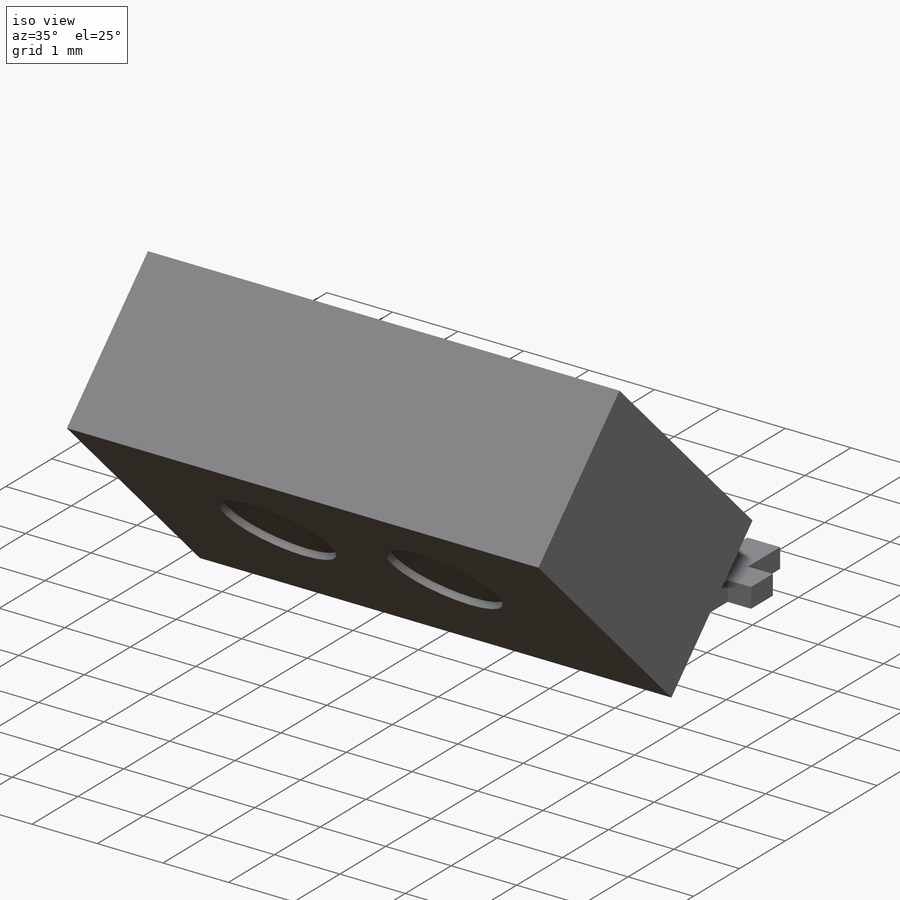
[diagram: iso view]
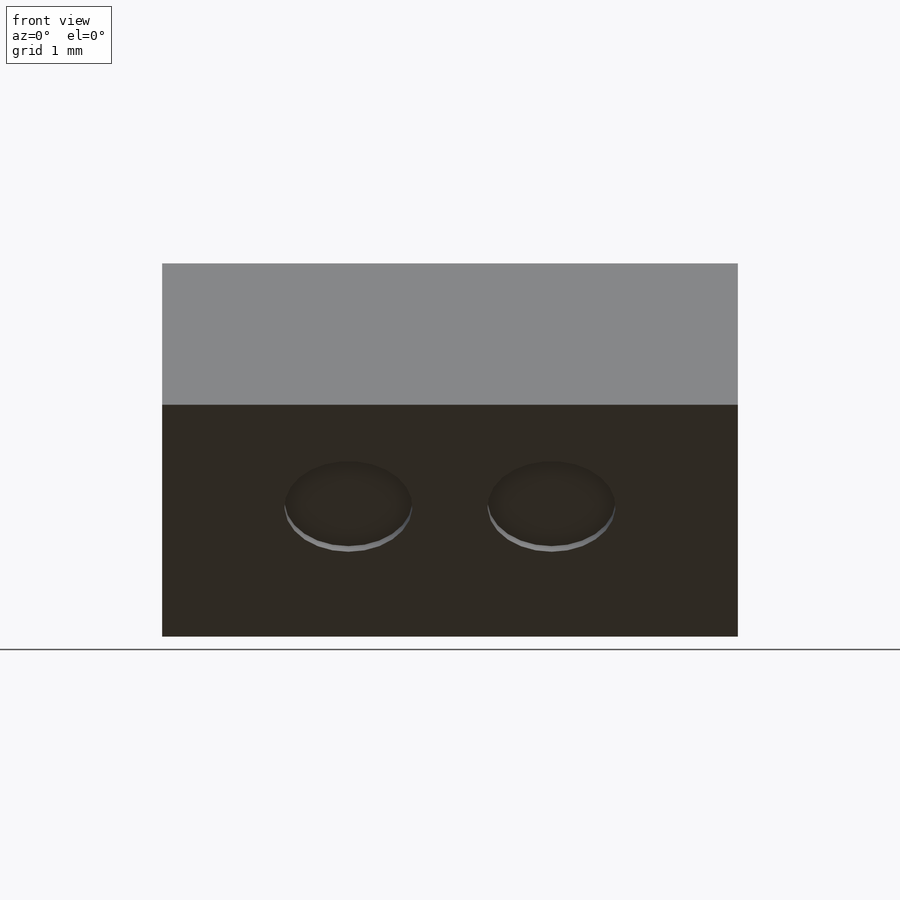
[diagram: front view]
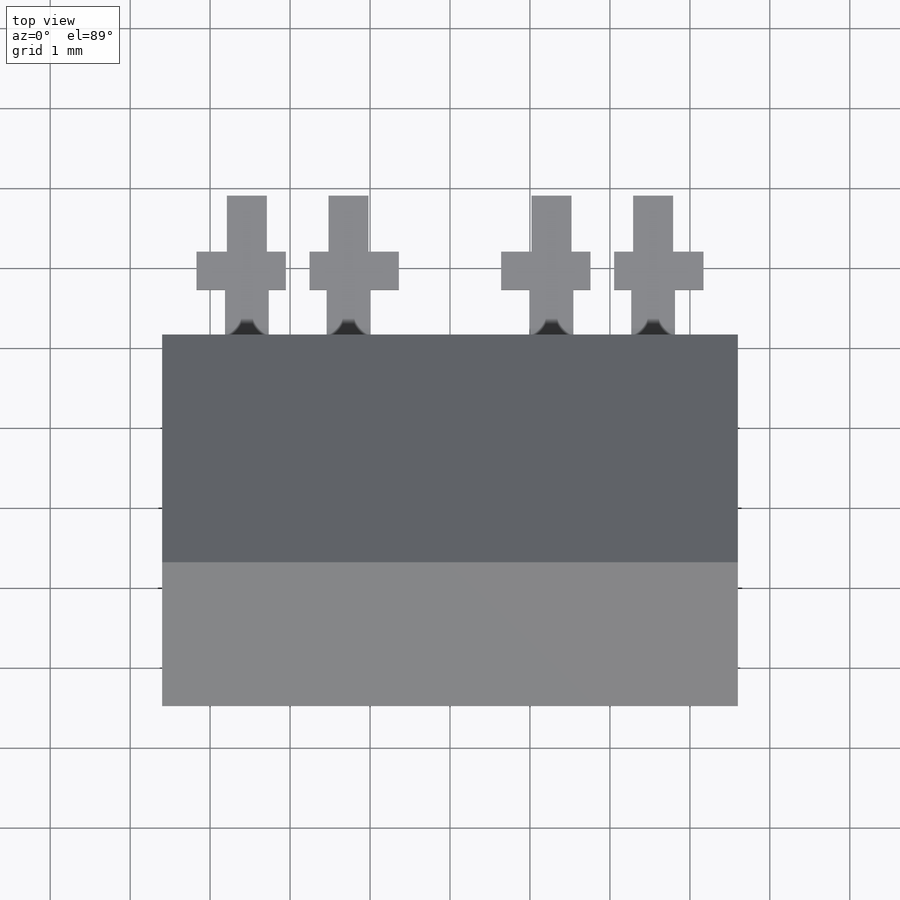
[diagram: top view]
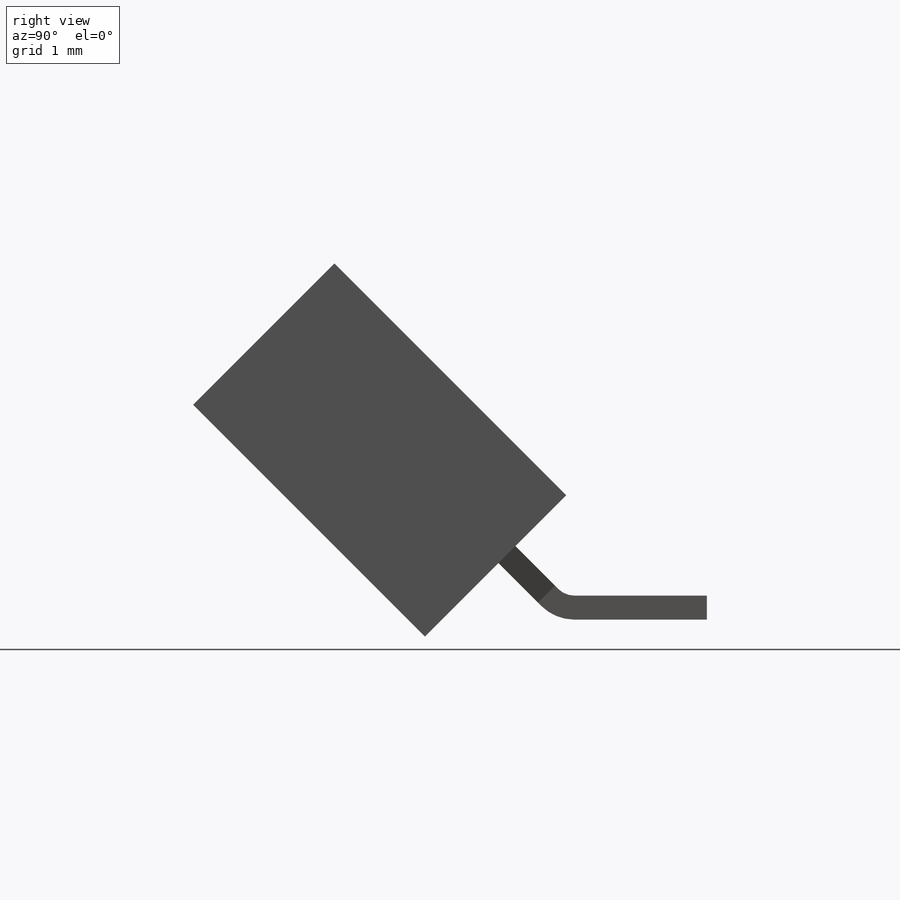
[diagram: right view]
SOLIDWORKS PART (.sldprt)
format: sldprt  version: not decoded by parser v0  size: 373,760 bytes
history: native  units: mm
features: plane x6, sketch x6, extrude x2, material x1, cut_extrude x1, sheet_metal_op x1 + 1 further entry (+8 scaffold rows collapsed)
feature tree (26):
  scaffold x8  (default folders/planes/origin — collapsed)
  material  "Matériau <non spécifié>"
  plane  "Plan de face"
  plane  "Plan de dessus"
  plane  "Plan de droite"
  sketch  "Esquisse2"  dims[c1.D1=7.2mm c1.D2=2.5mm c2.D1=~12.42438mm c3.D1=90.0deg c4.D1=7.2mm c4.D2=2.5mm c4.D3=1.3mm c4.D4=7.2mm c5.D2=1.45mm c5.D3=2.5mm]
  extrude  "Boitier"  Depth=4.1mm
  sketch  "Esquisse4"  dims[D1=1.6mm D2=2.54mm D3=1.8mm]
  cut_extrude  "FenetreCapteur"  Depth=0.1mm
  sketch  "Esquisse5"  dims[D1=1.905mm D2=0.635mm D3=0.5mm D4=7.0mm D5=6.3mm D6=0.7mm]
  extrude  "Pattes"  [1 undecoded]
  plane  "Hauteur ref"  Offset=2.2mm
  plane  "Plan1"
  plane  "Plan2"
  sheet_metal_op  "Tôlerie 1"
  sketch  "Esquisse-Angle1"  dims[D1=0.2865mm D2=500.0mm D3=0.0mm]
  sketch  "Esquisse-Plate1"  dims[c1.D1=1.0mm c2.D1=0.2865mm c2.D2=500.0mm c2.D3=0.0mm c2.D4=45.0deg c2.D5=1.0 c2.D8=0.15mm c2.D9=0.15mm c3.D1=0.2865mm c3.D2=500.0mm c3.D3=0.0mm]
  "Etat déplié1"
  sketch  "Lignes de pliage1"
decode coverage: 7 of 10 modeling features carry decoded parameters; 1 rows unclassified (native names shown)
note: ~ marks probable driven/reference dimensions
note: 1 parameter value undecoded
note: suppression state not decoded; provenance and decode notes live in map.json
